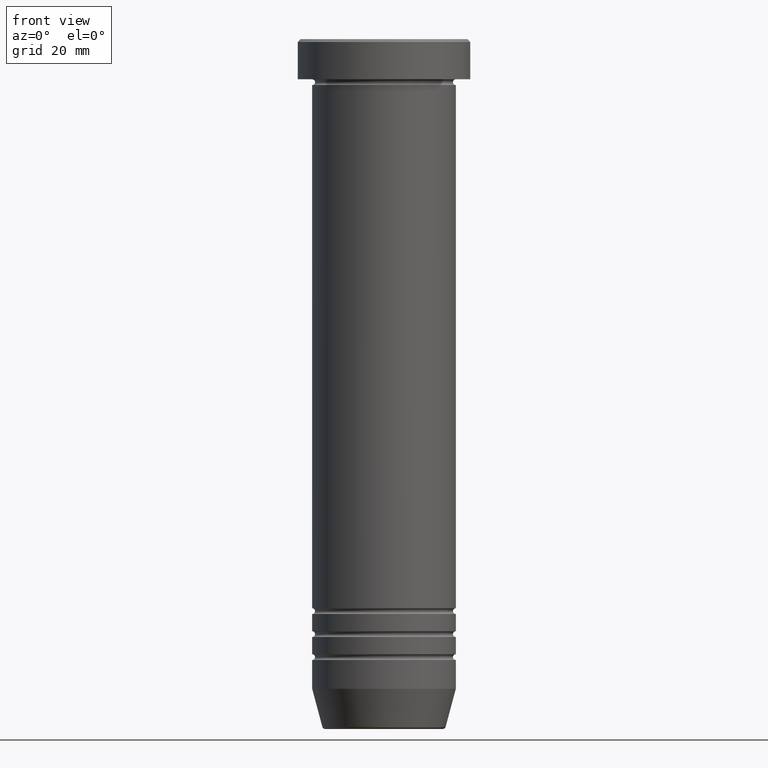
[diagram: clean part render]
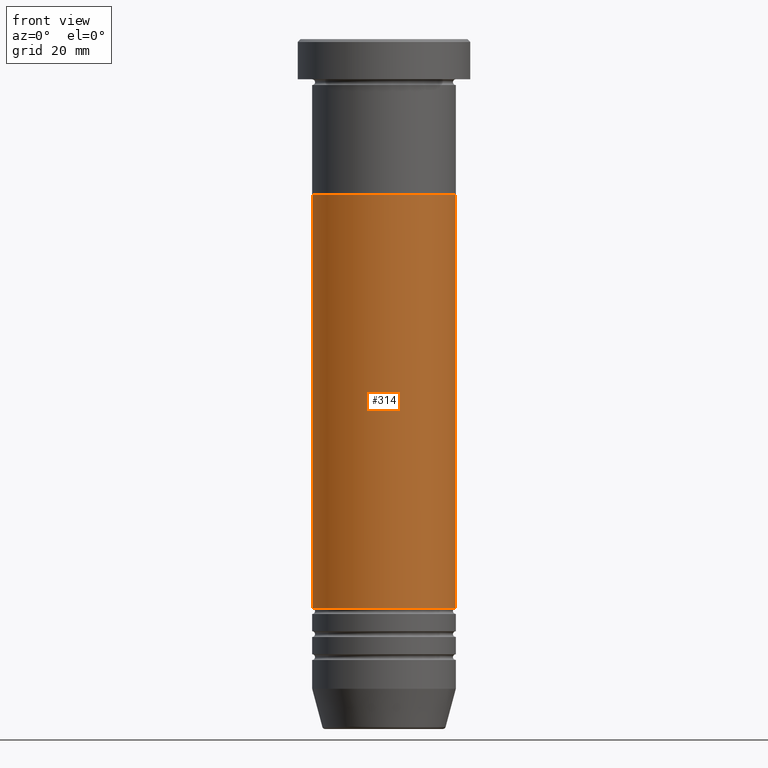
[diagram: same view with one face highlighted and labeled with its STEP entity id]
A machine part, front view. The second image highlights one B-rep face of the part: STEP entity #314.
In plain terms, the highlighted cylindrical surface (partial cylindrical patch) has radius 12.5 mm, axis along (-0, -0, 1).
Its self-contained STEP definition (entity closure, byte-faithful):
#18 = CARTESIAN_POINT ( 'NONE',  ( 12.49999999999999289, 0.000000000000000000, -98.99999999999998579 ) ) ;
#80 = VECTOR ( 'NONE', #1017, 1000.000000000000000 ) ;
#99 = DIRECTION ( 'NONE',  ( 1.000000000000000000, 0.000000000000000000, 0.000000000000000000 ) ) ;
#113 = LINE ( 'NONE', #128, #637 ) ;
#117 = CARTESIAN_POINT ( 'NONE',  ( -12.49999999999999645, 1.530808498934191127E-15, 0.000000000000000000 ) ) ;
#124 = DIRECTION ( 'NONE',  ( 1.000000000000000000, 0.000000000000000000, 0.000000000000000000 ) ) ;
#128 = CARTESIAN_POINT ( 'NONE',  ( 12.49999999999999645, 0.000000000000000000, 0.000000000000000000 ) ) ;
#134 = DIRECTION ( 'NONE',  ( -0.000000000000000000, -0.000000000000000000, 1.000000000000000000 ) ) ;
#229 = EDGE_CURVE ( 'NONE', #506, #818, #493, .T. ) ;
#278 = CARTESIAN_POINT ( 'NONE',  ( 0.000000000000000000, 0.000000000000000000, -98.99999999999998579 ) ) ;
#285 = ORIENTED_EDGE ( 'NONE', *, *, #229, .T. ) ;
#314 = ADVANCED_FACE ( 'NONE', ( #690 ), #1011, .T. ) ;
#493 = CIRCLE ( 'NONE', #1037, 12.49999999999999289 ) ;
#506 = VERTEX_POINT ( 'NONE', #912 ) ;
#512 = ORIENTED_EDGE ( 'NONE', *, *, #875, .F. ) ;
#525 = DIRECTION ( 'NONE',  ( -0.000000000000000000, -0.000000000000000000, 1.000000000000000000 ) ) ;
#557 = EDGE_LOOP ( 'NONE', ( #512, #285, #924, #731 ) ) ;
#581 = AXIS2_PLACEMENT_3D ( 'NONE', #758, #764, #99 ) ;
#605 = VERTEX_POINT ( 'NONE', #606 ) ;
#606 = CARTESIAN_POINT ( 'NONE',  ( 12.50000000000000000, 0.000000000000000000, -27.00000000000000000 ) ) ;
#637 = VECTOR ( 'NONE', #525, 1000.000000000000000 ) ;
#661 = VERTEX_POINT ( 'NONE', #699 ) ;
#685 = EDGE_CURVE ( 'NONE', #818, #605, #113, .T. ) ;
#690 = FACE_OUTER_BOUND ( 'NONE', #557, .T. ) ;
#699 = CARTESIAN_POINT ( 'NONE',  ( -12.50000000000000000, 1.530808498934191521E-15, -27.00000000000000000 ) ) ;
#708 = CARTESIAN_POINT ( 'NONE',  ( 0.000000000000000000, 0.000000000000000000, 0.000000000000000000 ) ) ;
#731 = ORIENTED_EDGE ( 'NONE', *, *, #810, .F. ) ;
#758 = CARTESIAN_POINT ( 'NONE',  ( 0.000000000000000000, 0.000000000000000000, -27.00000000000000000 ) ) ;
#764 = DIRECTION ( 'NONE',  ( -0.000000000000000000, -0.000000000000000000, 1.000000000000000000 ) ) ;
#810 = EDGE_CURVE ( 'NONE', #661, #605, #1005, .T. ) ;
#818 = VERTEX_POINT ( 'NONE', #18 ) ;
#835 = AXIS2_PLACEMENT_3D ( 'NONE', #708, #134, #1028 ) ;
#875 = EDGE_CURVE ( 'NONE', #506, #661, #985, .T. ) ;
#912 = CARTESIAN_POINT ( 'NONE',  ( -12.49999999999999289, 1.530808498934190930E-15, -98.99999999999998579 ) ) ;
#924 = ORIENTED_EDGE ( 'NONE', *, *, #685, .T. ) ;
#985 = LINE ( 'NONE', #117, #80 ) ;
#1005 = CIRCLE ( 'NONE', #581, 12.50000000000000000 ) ;
#1011 = CYLINDRICAL_SURFACE ( 'NONE', #835, 12.49999999999999645 ) ;
#1017 = DIRECTION ( 'NONE',  ( -0.000000000000000000, -0.000000000000000000, 1.000000000000000000 ) ) ;
#1028 = DIRECTION ( 'NONE',  ( 1.000000000000000000, 0.000000000000000000, 0.000000000000000000 ) ) ;
#1033 = DIRECTION ( 'NONE',  ( -0.000000000000000000, -0.000000000000000000, 1.000000000000000000 ) ) ;
#1037 = AXIS2_PLACEMENT_3D ( 'NONE', #278, #1033, #124 ) ;